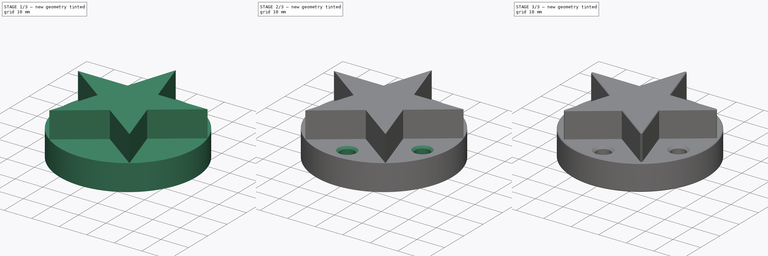
[diagram: build sequence overview — one tinted view per stage of 3, left to right]
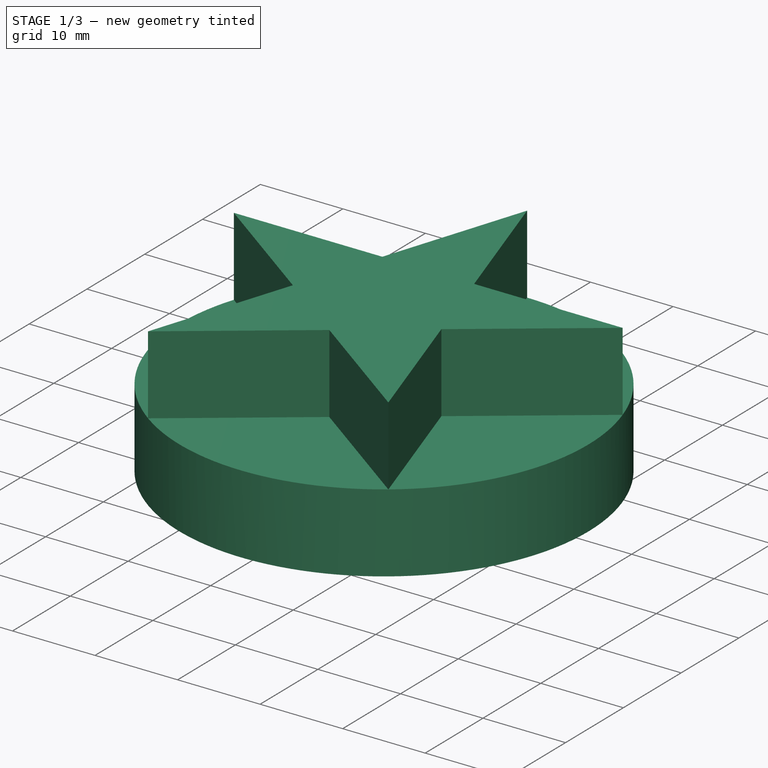
[diagram: stage 1 of 3 — iso view after this stage's code; geometry added in this stage tinted green]
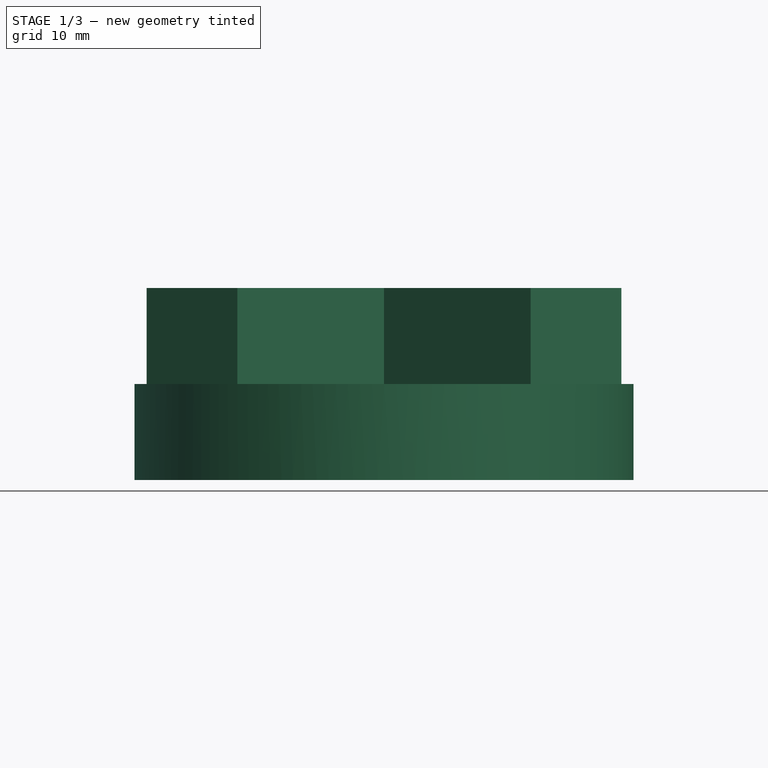
[diagram: stage 1 of 3 — front view after this stage's code; geometry added in this stage tinted green]
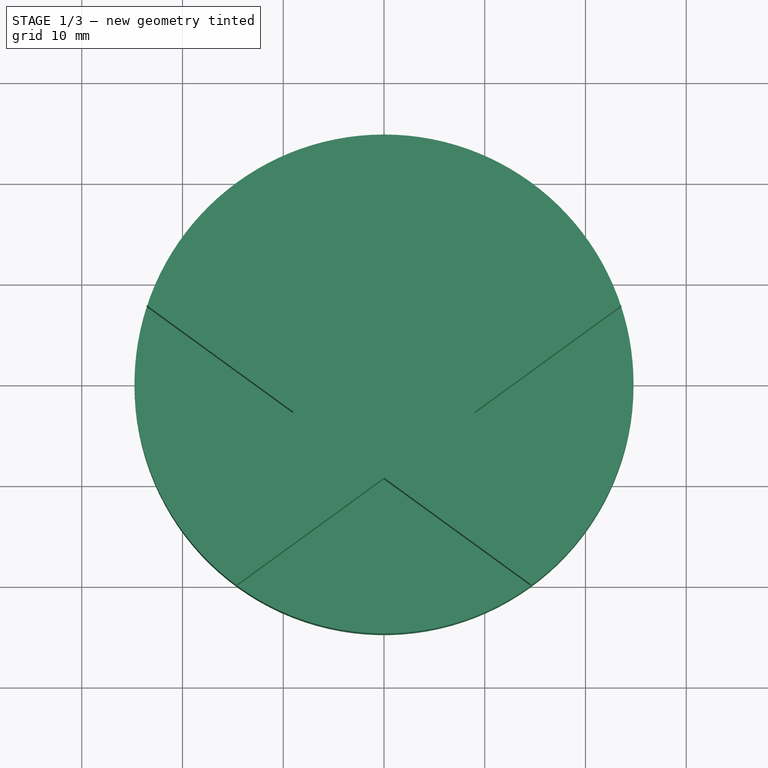
[diagram: stage 1 of 3 — top view after this stage's code; geometry added in this stage tinted green]
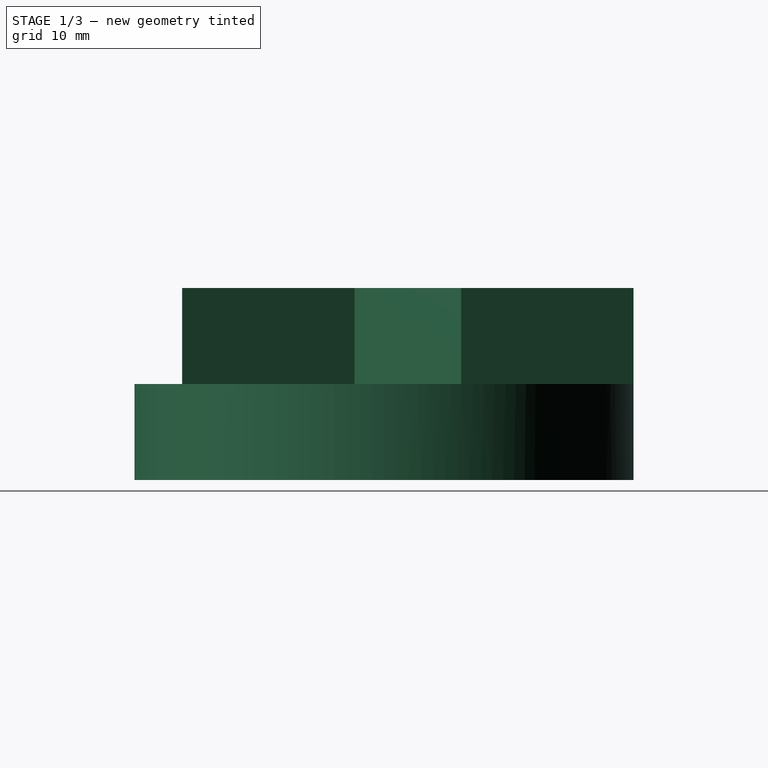
[diagram: stage 1 of 3 — right view after this stage's code; geometry added in this stage tinted green]
FCSTD DOCUMENT  (FreeCAD 0.20R26303 (Git))
Label: TITAN-5M
License: All rights reserved
LicenseURL: http://en.wikipedia.org/wiki/All_rights_reserved
objects: Sketcher::SketchObject×2, PartDesign::AdditiveCylinder×1, PartDesign::Pocket×1, PartDesign::Hole×1, PartDesign::Fillet×1, PartDesign::Chamfer×1, PartDesign::Body×1
note: 13 computed .brp shape members not serialized (recipe doc carries the construction recipe); baked Part::Feature solids carry a one-line shape summary decoded from their .brp

FEATURE [PartDesign::AdditiveCylinder] Cylinder
  Angle = 360
  AttacherType = Attacher::AttachEngine3D
  FirstAngle = 0
  Height = 19.05
  Radius = 24.765
  SecondAngle = 0
  expr: Radius = 1.95" / 2
FEATURE [Sketcher::SketchObject] Sketch
  ExternalGeometry = -> [Cylinder]
  FullyConstrained = true
  MapMode = 5
  Placement = pos=(0,0,19.05) rot=(0,0,1;0rad)
  Support = -> [Cylinder]
  sketch-geometry (16):
    g0: LineSegment StartX=9e-16 StartY=24.765 StartZ=0 EndX=5.56009 EndY=7.65281 EndZ=0
    g1: LineSegment StartX=14.5565 StartY=-20.0353 StartZ=0 EndX=3.6e-15 EndY=-9.45939 EndZ=0
    g2: LineSegment StartX=-23.5529 StartY=7.65281 StartZ=0 EndX=-5.56009 EndY=7.65281 EndZ=0
    g3: LineSegment StartX=23.5529 StartY=7.65281 StartZ=0 EndX=8.99641 EndY=-2.92311 EndZ=0
    g4: LineSegment StartX=-14.5565 StartY=-20.0353 StartZ=0 EndX=-8.99641 EndY=-2.92311 EndZ=0
    g5: LineSegment StartX=8.99641 StartY=-2.92311 StartZ=0 EndX=14.5565 EndY=-20.0353 EndZ=0
    g6: LineSegment StartX=-5.56009 StartY=7.65281 StartZ=0 EndX=9e-16 EndY=24.765 EndZ=0
    g7: LineSegment StartX=-8.99641 StartY=-2.92311 StartZ=0 EndX=-23.5529 EndY=7.65281 EndZ=0
    g8: LineSegment StartX=3.6e-15 StartY=-9.45939 StartZ=0 EndX=-14.5565 EndY=-20.0353 EndZ=0
    g9: LineSegment StartX=5.56009 StartY=7.65281 StartZ=0 EndX=23.5529 EndY=7.65281 EndZ=0
    g10: LineSegment StartX=-5.56009 StartY=7.65281 StartZ=0 EndX=-8.99641 EndY=-2.92311 EndZ=0
    g11: LineSegment StartX=-5.56009 StartY=7.65281 StartZ=0 EndX=5.56009 EndY=7.65281 EndZ=0
    g12: LineSegment StartX=5.56009 StartY=7.65281 StartZ=0 EndX=8.99641 EndY=-2.92311 EndZ=0
    g13: LineSegment StartX=3.6e-15 StartY=-9.45939 StartZ=0 EndX=8.99641 EndY=-2.92311 EndZ=0
    g14: LineSegment StartX=-8.99641 StartY=-2.92311 StartZ=0 EndX=3.6e-15 EndY=-9.45939 EndZ=0
    g15: Circle CenterX=0 CenterY=0 CenterZ=0 NormalX=0 NormalY=0 NormalZ=1 AngleXU=0 Radius=25.4
  constraints (42):
    c: PointOnObject(g0,g-3)
    c: PointOnObject(g5,g-3)
    c: Coincident(g5,g1)
    c: PointOnObject(g7,g-3)
    c: Coincident(g7,g2)
    c: PointOnObject(g9,g-3)
    c: Horizontal(g2)
    c: Coincident(g9,g3)
    c: PointOnObject(g8,g-3)
    c: Coincident(g8,g4)
    c: Coincident(g6,g0)
    c: Coincident(g7,g4)
    c: Coincident(g3,g5)
    c: Coincident(g8,g1)
    c: Coincident(g2,g6)
    c: Coincident(g9,g0)
    c: Coincident(g10,g2)
    c: Coincident(g10,g4)
    c: Coincident(g11,g2)
    c: Coincident(g11,g0)
    c: Horizontal(g11)
    c: Coincident(g12,g0)
    c: Coincident(g12,g3)
    c: Coincident(g13,g1)
    c: Coincident(g13,g3)
    c: Coincident(g14,g4)
    c: Coincident(g14,g1)
    c: Equal(g13,g12)
    c: Equal(g12,g11)
    c: Equal(g11,g10)
    c: Equal(g10,g14)
    c: Equal(g7,g2)
    c: Equal(g2,g6)
    c: Equal(g6,g0)
    c: Equal(g0,g9)
    c: Equal(g9,g3)
    c: Equal(g3,g5)
    c: Equal(g5,g1)
    c: Equal(g1,g8)
    c: Equal(g8,g4)
    c: Coincident(g15,g-1)
    c: Diameter(g15) = 50.8
FEATURE [PartDesign::Pocket] Pocket
  BaseFeature = -> Cylinder
  Length = 9.525
  Length2 = 99.9998
  Profile = -> Sketch
  Type = 0
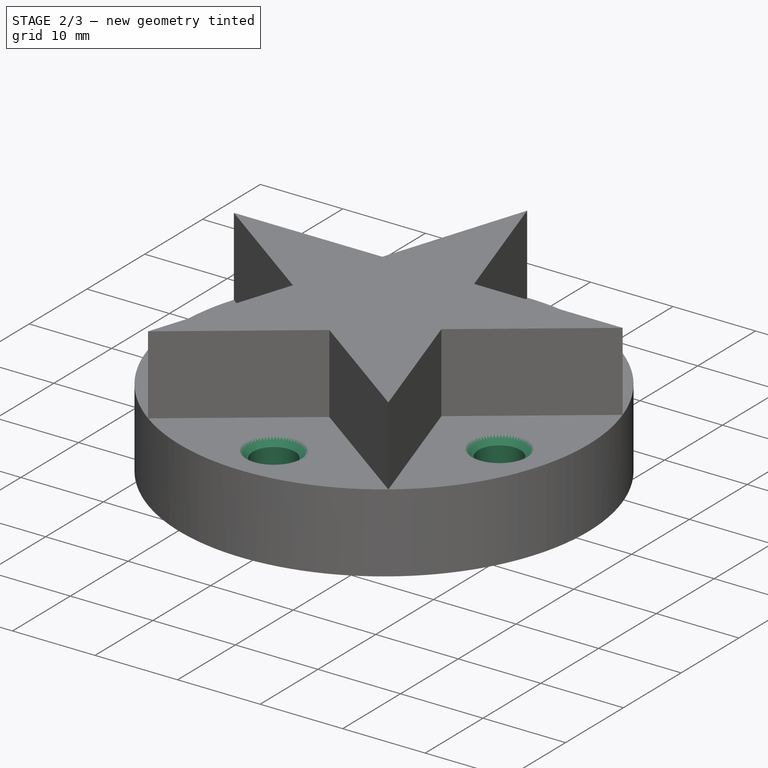
[diagram: stage 2 of 3 — iso view after this stage's code; geometry added in this stage tinted green]
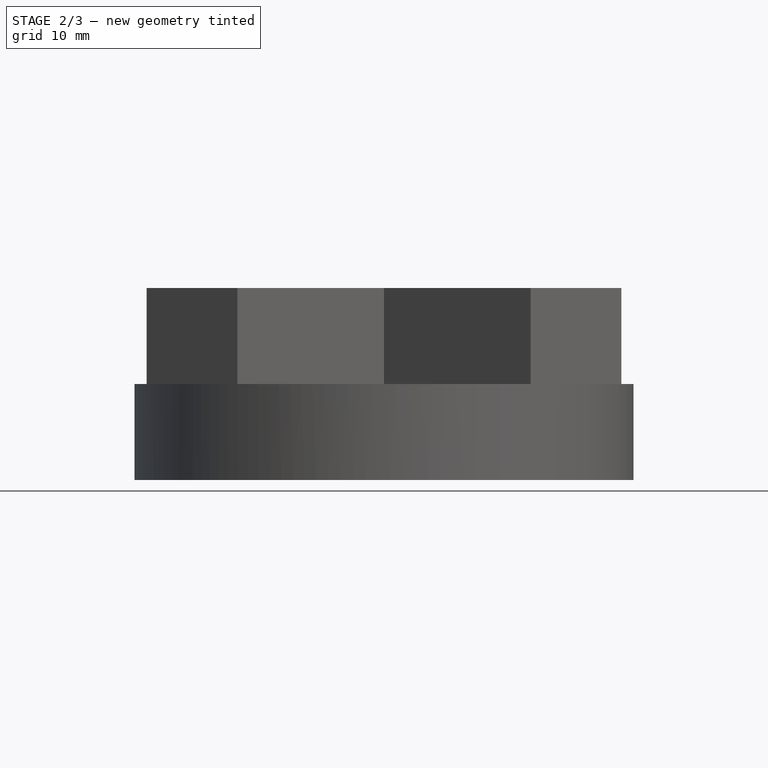
[diagram: stage 2 of 3 — front view after this stage's code; geometry added in this stage tinted green]
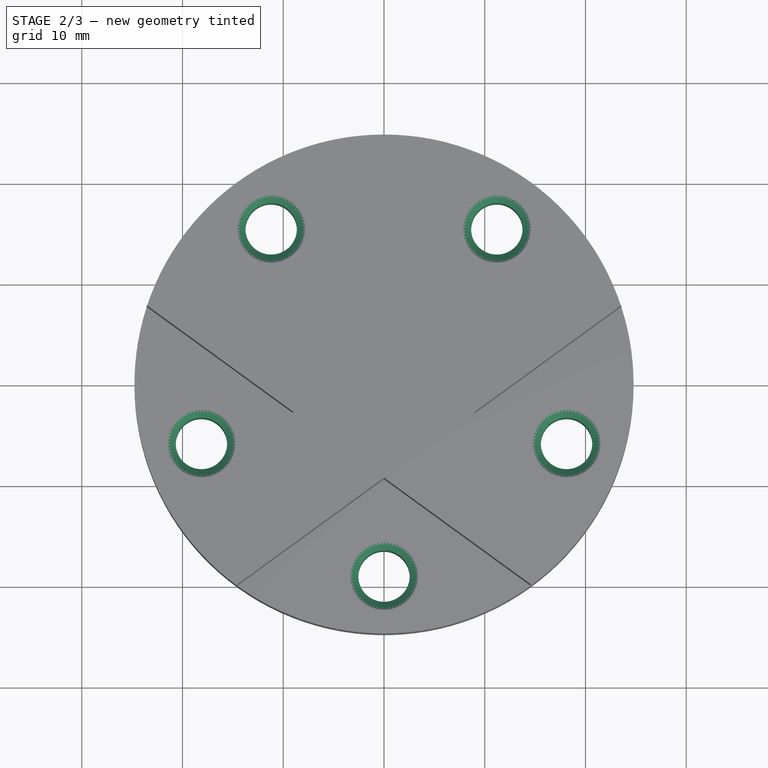
[diagram: stage 2 of 3 — top view after this stage's code; geometry added in this stage tinted green]
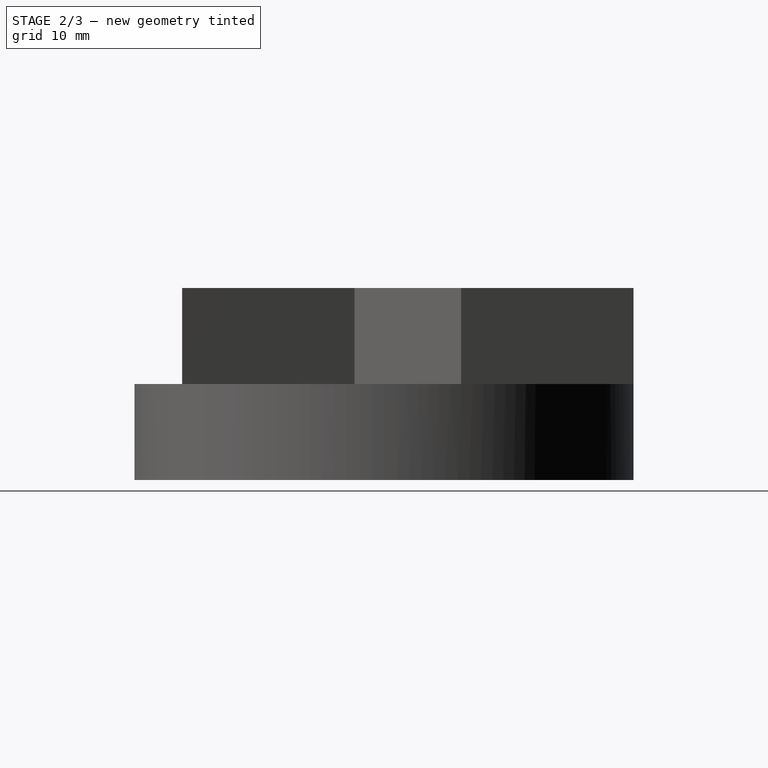
[diagram: stage 2 of 3 — right view after this stage's code; geometry added in this stage tinted green]
FEATURE [Sketcher::SketchObject] Sketch001
  FullyConstrained = true
  MapMode = 5
  Placement = pos=(0,0,9.525) rot=(0,0,1;0rad)
  Support = -> [Pocket]
  sketch-geometry (11):
    g0: LineSegment StartX=0 StartY=-19.05 StartZ=0 EndX=18.1176 EndY=-5.88677 EndZ=0
    g1: LineSegment StartX=18.1176 StartY=-5.88677 StartZ=0 EndX=11.1973 EndY=15.4118 EndZ=0
    g2: LineSegment StartX=11.1973 StartY=15.4118 StartZ=0 EndX=-11.1973 EndY=15.4118 EndZ=0
    g3: LineSegment StartX=-11.1973 StartY=15.4118 StartZ=0 EndX=-18.1176 EndY=-5.88677 EndZ=0
    g4: LineSegment StartX=-18.1176 StartY=-5.88677 StartZ=0 EndX=0 EndY=-19.05 EndZ=0
    g5: Circle CenterX=0 CenterY=0 CenterZ=0 NormalX=0 NormalY=0 NormalZ=1 AngleXU=0 Radius=19.05
    g6: Circle CenterX=11.1973 CenterY=15.4118 CenterZ=0 NormalX=0 NormalY=0 NormalZ=1 AngleXU=0 Radius=2.5527
    g7: Circle CenterX=-11.1973 CenterY=15.4118 CenterZ=0 NormalX=0 NormalY=0 NormalZ=1 AngleXU=0 Radius=2.5527
    g8: Circle CenterX=-18.1176 CenterY=-5.88677 CenterZ=0 NormalX=0 NormalY=0 NormalZ=1 AngleXU=0 Radius=2.5527
    g9: Circle CenterX=0 CenterY=-19.05 CenterZ=0 NormalX=0 NormalY=0 NormalZ=1 AngleXU=0 Radius=2.5527
    g10: Circle CenterX=18.1176 CenterY=-5.88677 CenterZ=0 NormalX=0 NormalY=0 NormalZ=1 AngleXU=0 Radius=2.5527
  constraints (24):
    c: Coincident(g0,g1)
    c: Coincident(g1,g2)
    c: Coincident(g2,g3)
    c: Coincident(g3,g4)
    c: Coincident(g4,g0)
    c: Equal(g0, g1-g4) x4
    c: PointOnObject(g0,g5)
    c: PointOnObject(g1,g5)
    c: PointOnObject(g2,g5)
    c: PointOnObject(g3,g5)
    c: PointOnObject(g4,g5)
    c: Coincident(g5,g-1)
    c: PointOnObject(g4,g-2)
    c: Diameter(g5) = 38.1
    c: Coincident(g6,g1)
    c: Coincident(g7,g2)
    c: Coincident(g8,g3)
    c: Coincident(g9,g0)
    c: Coincident(g10,g0)
    c: Equal(g10,g6)
    c: Equal(g6,g7)
    c: Equal(g7,g8)
    c: Equal(g8,g9)
    c: Diameter(g7) = 5.1054
FEATURE [PartDesign::Hole] Hole
  BaseFeature = -> Pocket
  CustomThreadClearance = 0
  Depth = 9.525
  DepthType = 0
  Diameter = 5.1
  DrillForDepth = false
  DrillPoint = 1
  DrillPointAngle = 118
  HoleCutCountersinkAngle = 90
  HoleCutCustomValues = false
  HoleCutDepth = 0
  HoleCutDiameter = 6.731
  HoleCutType = 2
  ModelThread = false
  Profile = -> Sketch001
  Tapered = false
  TaperedAngle = 90
  ThreadClass = 1
  ThreadDepth = 9.525
  ThreadDepthType = 0
  ThreadDirection = 0
  ThreadFit = 0
  ThreadSize = 9
  ThreadType = 3
  Threaded = true
  UseCustomThreadClearance = false
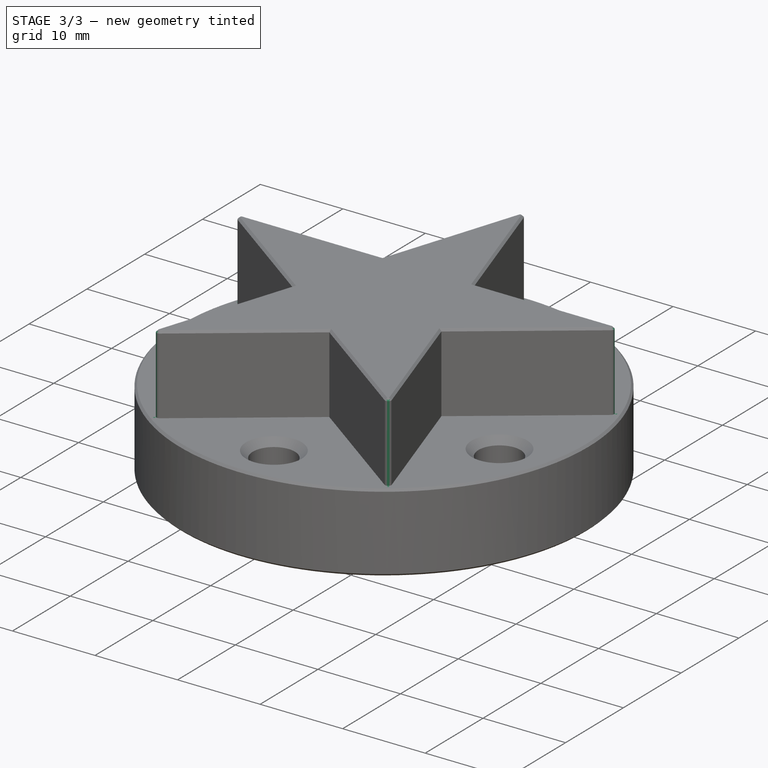
[diagram: stage 3 of 3 — iso view after this stage's code; geometry added in this stage tinted green]
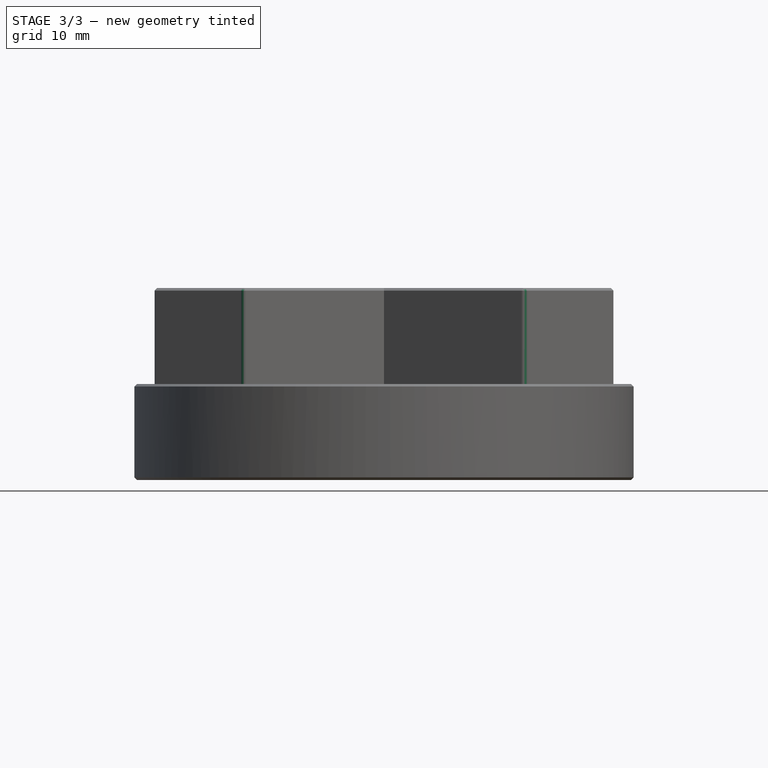
[diagram: stage 3 of 3 — front view after this stage's code; geometry added in this stage tinted green]
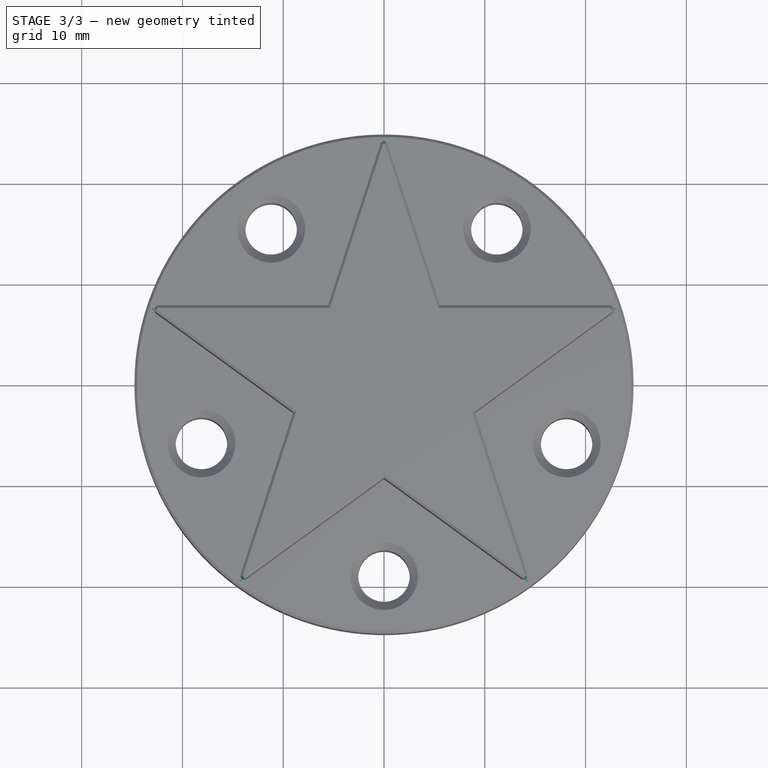
[diagram: stage 3 of 3 — top view after this stage's code; geometry added in this stage tinted green]
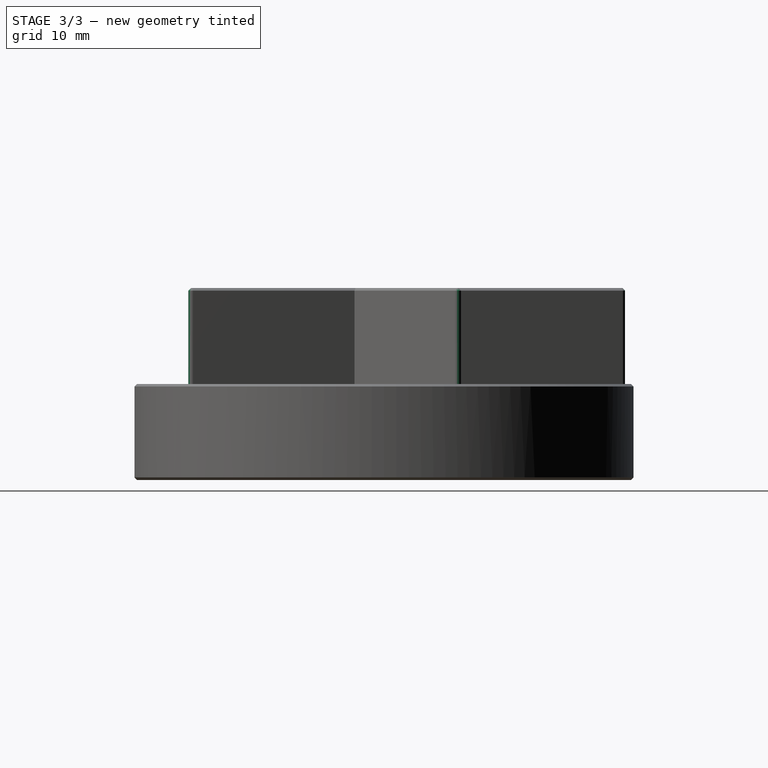
[diagram: stage 3 of 3 — right view after this stage's code; geometry added in this stage tinted green]
FEATURE [PartDesign::Fillet] Fillet
  Base = -> Hole [Edge42,Edge39,Edge56,Edge51,Edge46]
  BaseFeature = -> Hole
  Radius = 0.381
  SupportTransform = false
FEATURE [PartDesign::Chamfer] Chamfer
  Angle = 45
  Base = -> Fillet [Edge4,Edge58,Edge74,Edge83,Edge91,Edge52,Edge5]
  BaseFeature = -> Fillet
  ChamferType = 0
  FlipDirection = false
  Refine = true
  Size = 0.254
  Size2 = 1
  SupportTransform = false
FEATURE [PartDesign::Body] Body
  Group = -> [Cylinder,Sketch,Pocket,Sketch001,Hole,Fillet,Chamfer]
  Origin = -> Origin
  Tip = -> Chamfer
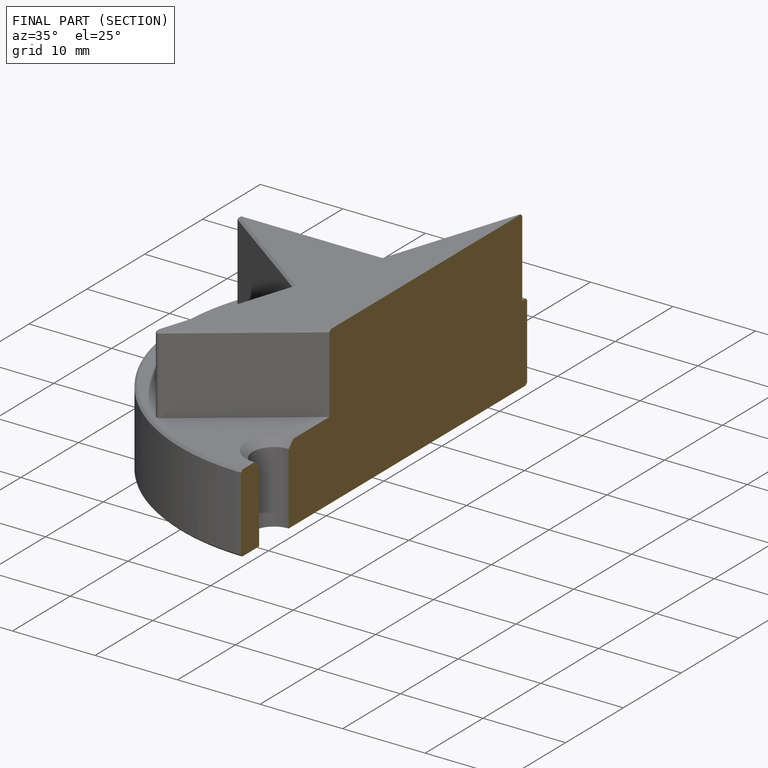
[diagram: finished part — half-section view (interior)]
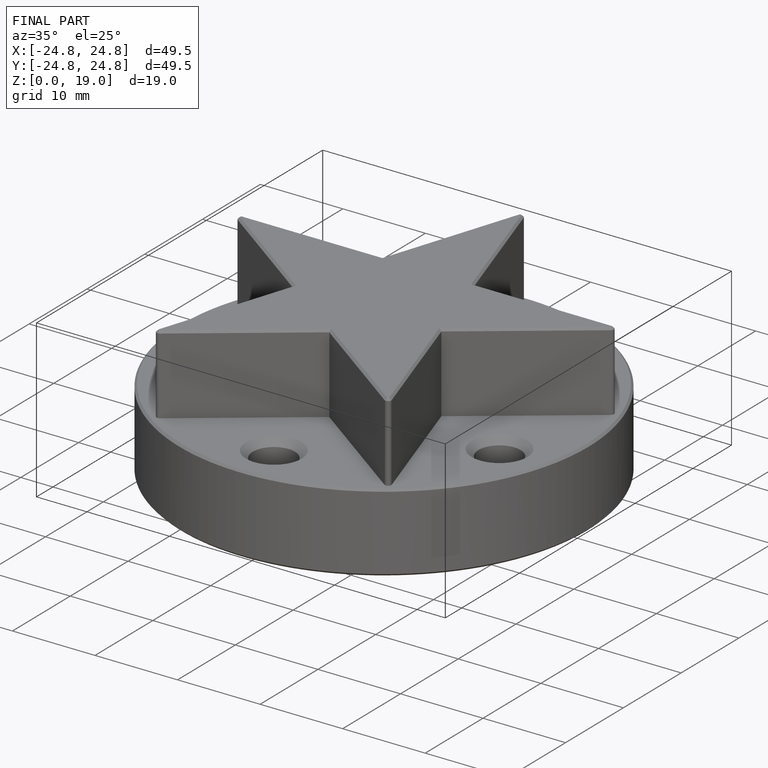
[diagram: finished part — iso view with bounding-box wireframe]
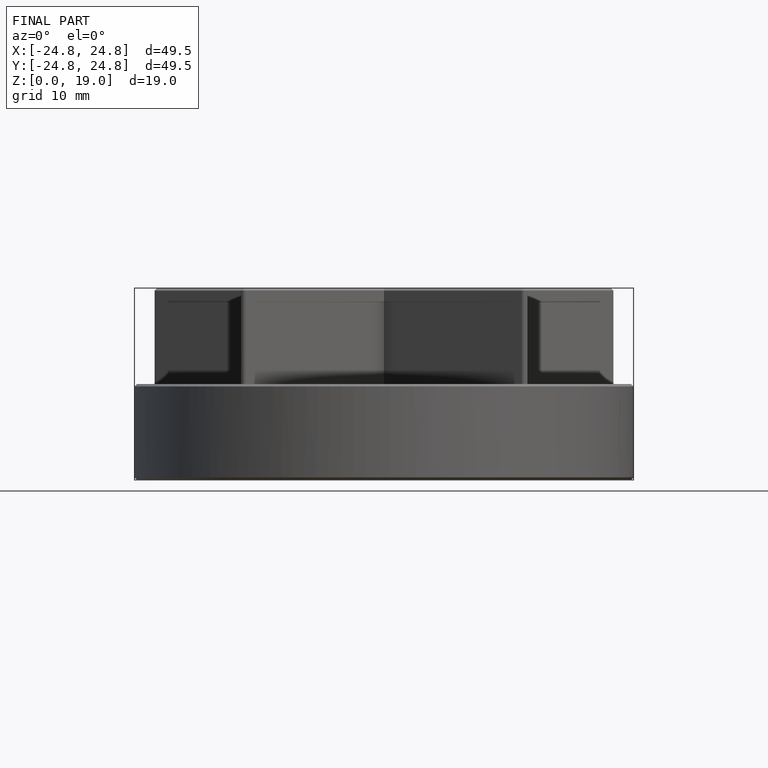
[diagram: finished part — front view with bounding-box wireframe]
